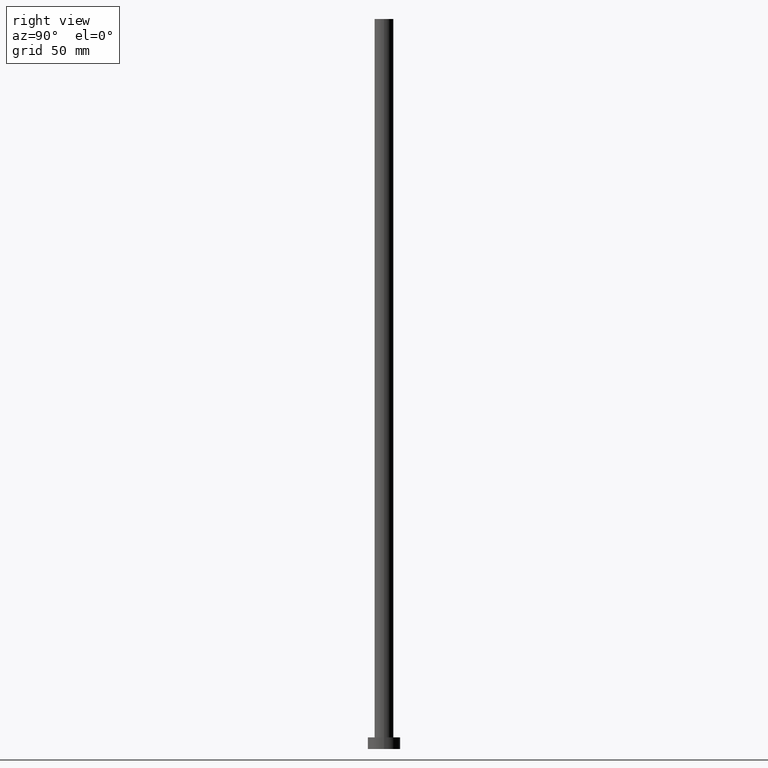
[diagram: clean part render]
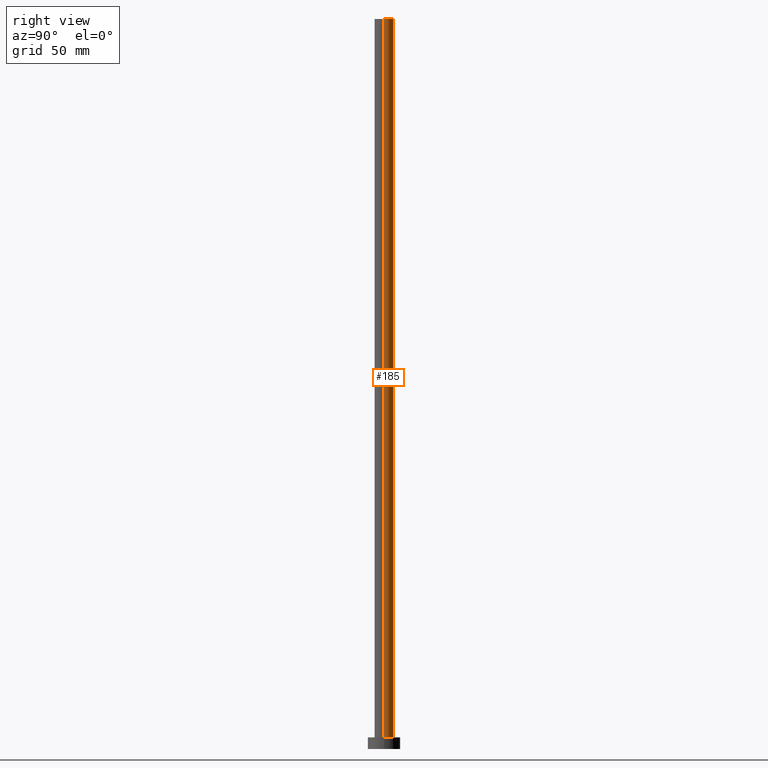
[diagram: same view with one face highlighted and labeled with its STEP entity id]
A machine part, right view. The second image highlights one B-rep face of the part: STEP entity #185.
In plain terms, the highlighted cylindrical surface (edge-blend (fillet) strip) has radius 4.1 mm, axis along (-0, -0, -1).
Its self-contained STEP definition (entity closure, byte-faithful):
#2 = LINE ( 'NONE', #61, #76 ) ;
#5 = CIRCLE ( 'NONE', #166, 4.099999999999999645 ) ;
#9 = CARTESIAN_POINT ( 'NONE',  ( 4.099999999999999645, 5.021051876504147385E-16, 315.0000000000000000 ) ) ;
#15 = ORIENTED_EDGE ( 'NONE', *, *, #158, .T. ) ;
#16 = VERTEX_POINT ( 'NONE', #95 ) ;
#40 = DIRECTION ( 'NONE',  ( 1.000000000000000000, 0.000000000000000000, 0.000000000000000000 ) ) ;
#42 = DIRECTION ( 'NONE',  ( -0.000000000000000000, -0.000000000000000000, -1.000000000000000000 ) ) ;
#61 = CARTESIAN_POINT ( 'NONE',  ( -4.099999999999999645, 0.000000000000000000, 315.0000000000000000 ) ) ;
#62 = CIRCLE ( 'NONE', #247, 4.099999999999999645 ) ;
#74 = DIRECTION ( 'NONE',  ( -0.000000000000000000, -0.000000000000000000, -1.000000000000000000 ) ) ;
#76 = VECTOR ( 'NONE', #89, 1000.000000000000000 ) ;
#89 = DIRECTION ( 'NONE',  ( -0.000000000000000000, -0.000000000000000000, -1.000000000000000000 ) ) ;
#94 = VERTEX_POINT ( 'NONE', #9 ) ;
#95 = CARTESIAN_POINT ( 'NONE',  ( -4.099999999999999645, 0.000000000000000000, 5.000000000000000000 ) ) ;
#96 = AXIS2_PLACEMENT_3D ( 'NONE', #179, #42, #128 ) ;
#97 = ORIENTED_EDGE ( 'NONE', *, *, #187, .F. ) ;
#100 = CARTESIAN_POINT ( 'NONE',  ( 4.099999999999999645, 5.021051876504147385E-16, 315.0000000000000000 ) ) ;
#107 = FACE_OUTER_BOUND ( 'NONE', #155, .T. ) ;
#108 = CARTESIAN_POINT ( 'NONE',  ( 0.000000000000000000, 0.000000000000000000, 315.0000000000000000 ) ) ;
#117 = LINE ( 'NONE', #100, #208 ) ;
#127 = EDGE_CURVE ( 'NONE', #242, #16, #62, .T. ) ;
#128 = DIRECTION ( 'NONE',  ( -1.000000000000000000, 0.000000000000000000, 0.000000000000000000 ) ) ;
#131 = CYLINDRICAL_SURFACE ( 'NONE', #96, 4.099999999999999645 ) ;
#155 = EDGE_LOOP ( 'NONE', ( #97, #15, #216, #164 ) ) ;
#158 = EDGE_CURVE ( 'NONE', #94, #242, #117, .T. ) ;
#163 = VERTEX_POINT ( 'NONE', #195 ) ;
#164 = ORIENTED_EDGE ( 'NONE', *, *, #191, .F. ) ;
#166 = AXIS2_PLACEMENT_3D ( 'NONE', #108, #215, #40 ) ;
#178 = CARTESIAN_POINT ( 'NONE',  ( 4.099999999999999645, 5.021051876504147385E-16, 5.000000000000000000 ) ) ;
#179 = CARTESIAN_POINT ( 'NONE',  ( 0.000000000000000000, 0.000000000000000000, 315.0000000000000000 ) ) ;
#185 = ADVANCED_FACE ( 'NONE', ( #107 ), #131, .T. ) ;
#187 = EDGE_CURVE ( 'NONE', #94, #163, #5, .T. ) ;
#191 = EDGE_CURVE ( 'NONE', #163, #16, #2, .T. ) ;
#195 = CARTESIAN_POINT ( 'NONE',  ( -4.099999999999999645, 0.000000000000000000, 315.0000000000000000 ) ) ;
#206 = CARTESIAN_POINT ( 'NONE',  ( 0.000000000000000000, 0.000000000000000000, 5.000000000000000000 ) ) ;
#207 = DIRECTION ( 'NONE',  ( 1.000000000000000000, 0.000000000000000000, 0.000000000000000000 ) ) ;
#208 = VECTOR ( 'NONE', #74, 1000.000000000000000 ) ;
#209 = DIRECTION ( 'NONE',  ( 0.000000000000000000, 0.000000000000000000, 1.000000000000000000 ) ) ;
#215 = DIRECTION ( 'NONE',  ( 0.000000000000000000, 0.000000000000000000, 1.000000000000000000 ) ) ;
#216 = ORIENTED_EDGE ( 'NONE', *, *, #127, .T. ) ;
#242 = VERTEX_POINT ( 'NONE', #178 ) ;
#247 = AXIS2_PLACEMENT_3D ( 'NONE', #206, #209, #207 ) ;